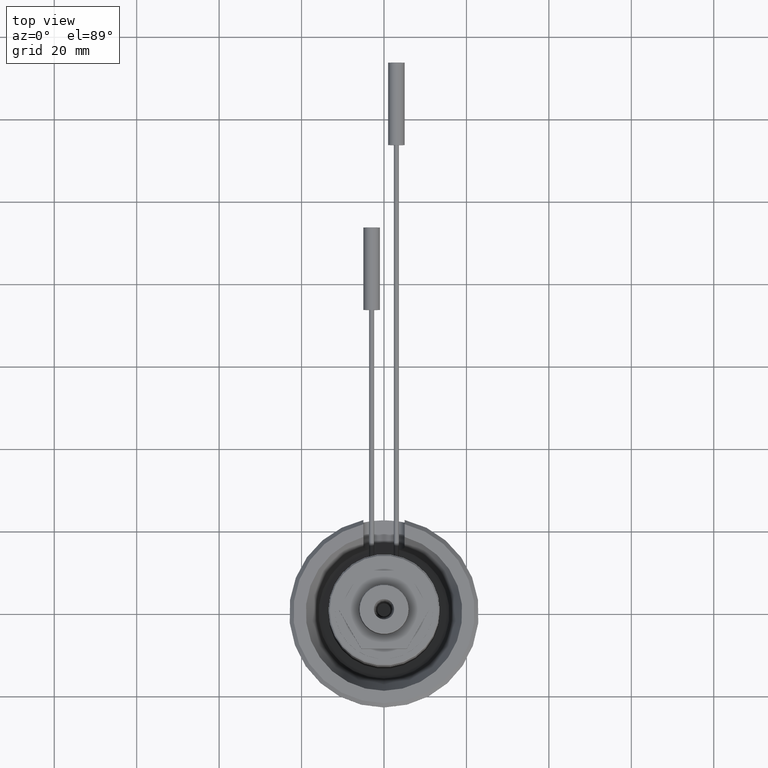
[diagram: clean part render]
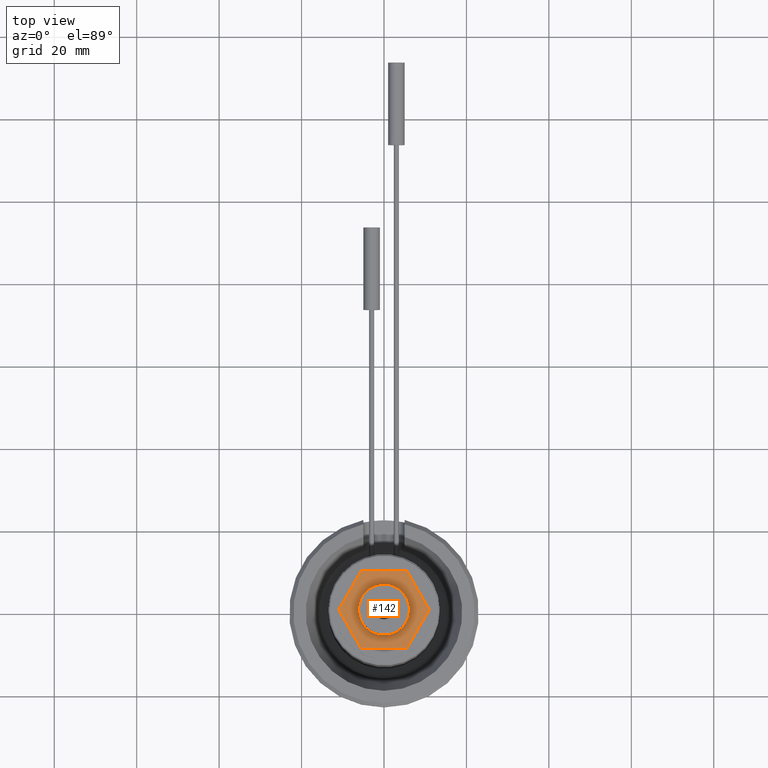
[diagram: same view with one face highlighted and labeled with its STEP entity id]
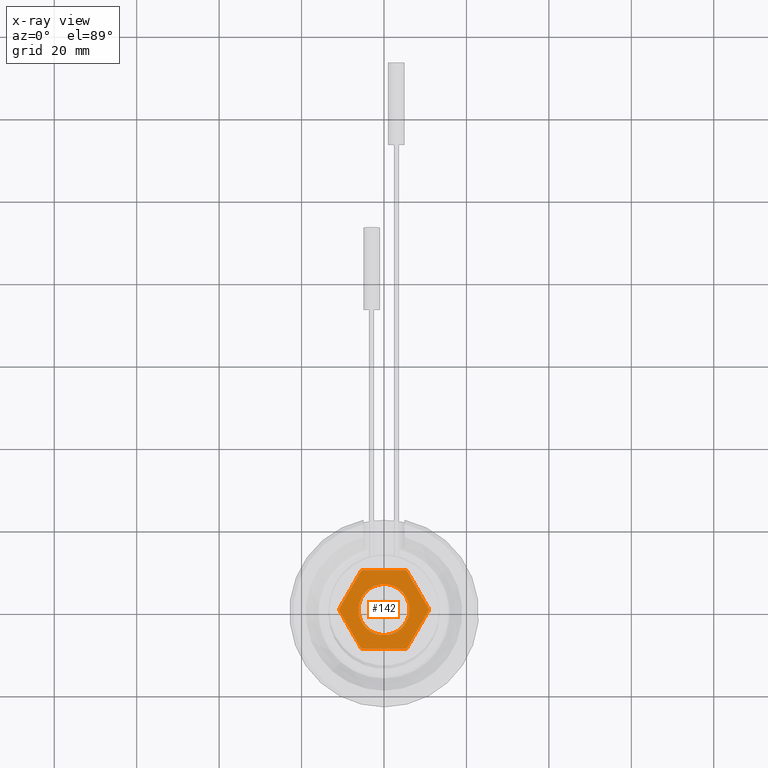
[diagram: x-ray of the same camera — body ghosted, the highlighted face saturated]
A machine part, top view. The second image highlights one B-rep face of the part: STEP entity #142.
The next image is the same camera in x-ray: the body ghosted, the highlighted face saturated — about 0% of this face is hidden behind the body in this view.
In plain terms, the highlighted planar face has unit normal (0, 0, -1).
Its self-contained STEP definition (entity closure, byte-faithful):
#142=ADVANCED_FACE('',(#326,#327),#207,.F.);
#207=PLANE('',#982);
#238=LINE('',#1387,#282);
#239=LINE('',#1392,#283);
#240=LINE('',#1396,#284);
#241=LINE('',#1400,#285);
#242=LINE('',#1404,#286);
#243=LINE('',#1408,#287);
#282=VECTOR('',#1100,1.);
#283=VECTOR('',#1103,1.);
#284=VECTOR('',#1106,1.);
#285=VECTOR('',#1109,1.);
#286=VECTOR('',#1112,1.);
#287=VECTOR('',#1115,1.);
#326=FACE_BOUND('',#382,.T.);
#327=FACE_BOUND('',#383,.T.);
#382=EDGE_LOOP('',(#476));
#383=EDGE_LOOP('',(#477,#478,#479,#480,#481,#482,#483,#484,#485,#486,#487,
#488));
#476=ORIENTED_EDGE('',*,*,#800,.T.);
#477=ORIENTED_EDGE('',*,*,#801,.F.);
#478=ORIENTED_EDGE('',*,*,#802,.T.);
#479=ORIENTED_EDGE('',*,*,#803,.F.);
#480=ORIENTED_EDGE('',*,*,#804,.T.);
#481=ORIENTED_EDGE('',*,*,#805,.F.);
#482=ORIENTED_EDGE('',*,*,#806,.T.);
#483=ORIENTED_EDGE('',*,*,#807,.F.);
#484=ORIENTED_EDGE('',*,*,#808,.T.);
#485=ORIENTED_EDGE('',*,*,#809,.F.);
#486=ORIENTED_EDGE('',*,*,#810,.T.);
#487=ORIENTED_EDGE('',*,*,#811,.F.);
#488=ORIENTED_EDGE('',*,*,#812,.T.);
#712=VERTEX_POINT('',#1386);
#713=VERTEX_POINT('',#1388);
#714=VERTEX_POINT('',#1389);
#715=VERTEX_POINT('',#1391);
#716=VERTEX_POINT('',#1393);
#717=VERTEX_POINT('',#1395);
#718=VERTEX_POINT('',#1397);
#719=VERTEX_POINT('',#1399);
#720=VERTEX_POINT('',#1401);
#721=VERTEX_POINT('',#1403);
#722=VERTEX_POINT('',#1405);
#723=VERTEX_POINT('',#1407);
#724=VERTEX_POINT('',#1409);
#800=EDGE_CURVE('',#712,#712,#918,.T.);
#801=EDGE_CURVE('',#713,#714,#238,.T.);
#802=EDGE_CURVE('',#713,#715,#919,.T.);
#803=EDGE_CURVE('',#716,#715,#239,.T.);
#804=EDGE_CURVE('',#716,#717,#920,.T.);
#805=EDGE_CURVE('',#718,#717,#240,.T.);
#806=EDGE_CURVE('',#718,#719,#921,.T.);
#807=EDGE_CURVE('',#720,#719,#241,.T.);
#808=EDGE_CURVE('',#720,#721,#922,.T.);
#809=EDGE_CURVE('',#722,#721,#242,.T.);
#810=EDGE_CURVE('',#722,#723,#923,.T.);
#811=EDGE_CURVE('',#724,#723,#243,.T.);
#812=EDGE_CURVE('',#724,#714,#924,.T.);
#918=CIRCLE('',#975,6.2);
#919=CIRCLE('',#976,10.9);
#920=CIRCLE('',#977,10.9);
#921=CIRCLE('',#978,10.9);
#922=CIRCLE('',#979,10.9);
#923=CIRCLE('',#980,10.9);
#924=CIRCLE('',#981,10.9);
#975=AXIS2_PLACEMENT_3D('',#1385,#1098,#1099);
#976=AXIS2_PLACEMENT_3D('',#1390,#1101,#1102);
#977=AXIS2_PLACEMENT_3D('',#1394,#1104,#1105);
#978=AXIS2_PLACEMENT_3D('',#1398,#1107,#1108);
#979=AXIS2_PLACEMENT_3D('',#1402,#1110,#1111);
#980=AXIS2_PLACEMENT_3D('',#1406,#1113,#1114);
#981=AXIS2_PLACEMENT_3D('',#1410,#1116,#1117);
#982=AXIS2_PLACEMENT_3D('',#1411,#1118,#1119);
#1098=DIRECTION('',(0.,0.,-1.));
#1099=DIRECTION('',(-1.,0.,0.));
#1100=DIRECTION('',(-0.500000000000003,0.866025403784437,0.));
#1101=DIRECTION('',(0.,0.,1.));
#1102=DIRECTION('',(1.,0.,0.));
#1103=DIRECTION('',(-1.,-2.27221380597914E-15,0.));
#1104=DIRECTION('',(0.,0.,1.));
#1105=DIRECTION('',(1.,0.,0.));
#1106=DIRECTION('',(-0.499999999999999,-0.866025403784439,0.));
#1107=DIRECTION('',(0.,0.,1.));
#1108=DIRECTION('',(1.,0.,0.));
#1109=DIRECTION('',(0.500000000000001,-0.866025403784438,0.));
#1110=DIRECTION('',(0.,0.,1.));
#1111=DIRECTION('',(1.,0.,0.));
#1112=DIRECTION('',(1.,0.,0.));
#1113=DIRECTION('',(0.,0.,1.));
#1114=DIRECTION('',(1.,0.,0.));
#1115=DIRECTION('',(0.499999999999996,0.866025403784441,0.));
#1116=DIRECTION('',(0.,0.,1.));
#1117=DIRECTION('',(1.,0.,0.));
#1118=DIRECTION('',(0.,0.,-1.));
#1119=DIRECTION('',(-1.,0.,0.));
#1385=CARTESIAN_POINT('',(0.,0.,63.7000000000001));
#1386=CARTESIAN_POINT('',(-6.2,0.,63.7000000000001));
#1387=CARTESIAN_POINT('',(-5.55516349277466,-9.37817458616247,63.7000000000001));
#1388=CARTESIAN_POINT('',(-5.55516349277466,-9.37817458616247,63.7000000000001));
#1389=CARTESIAN_POINT('',(-10.8993191791296,-0.121825413837578,63.7000000000001));
#1390=CARTESIAN_POINT('',(0.,0.,63.7000000000001));
#1391=CARTESIAN_POINT('',(-5.34415568635493,-9.50000000000001,63.7000000000001));
#1392=CARTESIAN_POINT('',(5.34415568635498,-9.49999999999999,63.7000000000001));
#1393=CARTESIAN_POINT('',(5.34415568635498,-9.49999999999999,63.7000000000001));
#1394=CARTESIAN_POINT('',(0.,0.,63.7000000000001));
#1395=CARTESIAN_POINT('',(5.5551634927747,-9.37817458616245,63.7000000000001));
#1396=CARTESIAN_POINT('',(10.8993191791296,-0.121825413837527,63.7000000000001));
#1397=CARTESIAN_POINT('',(10.8993191791296,-0.121825413837527,63.7000000000001));
#1398=CARTESIAN_POINT('',(0.,0.,63.7000000000001));
#1399=CARTESIAN_POINT('',(10.8993191791296,0.121825413837552,63.7000000000001));
#1400=CARTESIAN_POINT('',(5.55516349277468,9.37817458616246,63.7000000000001));
#1401=CARTESIAN_POINT('',(5.55516349277468,9.37817458616246,63.7000000000001));
#1402=CARTESIAN_POINT('',(0.,0.,63.7000000000001));
#1403=CARTESIAN_POINT('',(5.34415568635496,9.5,63.7000000000001));
#1404=CARTESIAN_POINT('',(-5.34415568635496,9.5,63.7000000000001));
#1405=CARTESIAN_POINT('',(-5.34415568635495,9.5,63.7000000000001));
#1406=CARTESIAN_POINT('',(0.,0.,63.7000000000001));
#1407=CARTESIAN_POINT('',(-5.55516349277473,9.37817458616243,63.7000000000001));
#1408=CARTESIAN_POINT('',(-10.8993191791296,0.121825413837499,63.7000000000001));
#1409=CARTESIAN_POINT('',(-10.8993191791296,0.121825413837501,63.7000000000001));
#1410=CARTESIAN_POINT('',(0.,0.,63.7000000000001));
#1411=CARTESIAN_POINT('',(-10.9,0.,63.7000000000001));